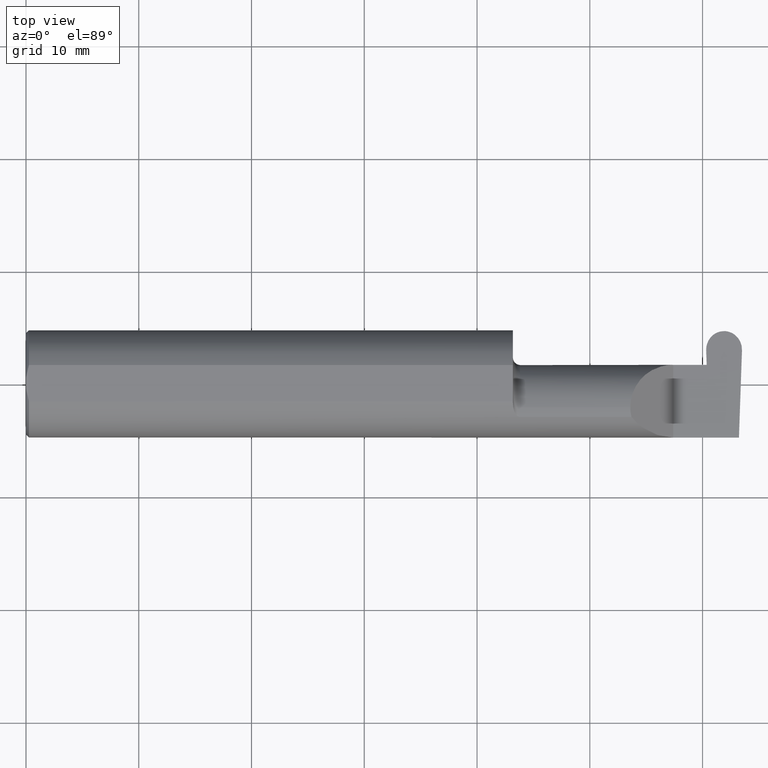
[diagram: clean part render]
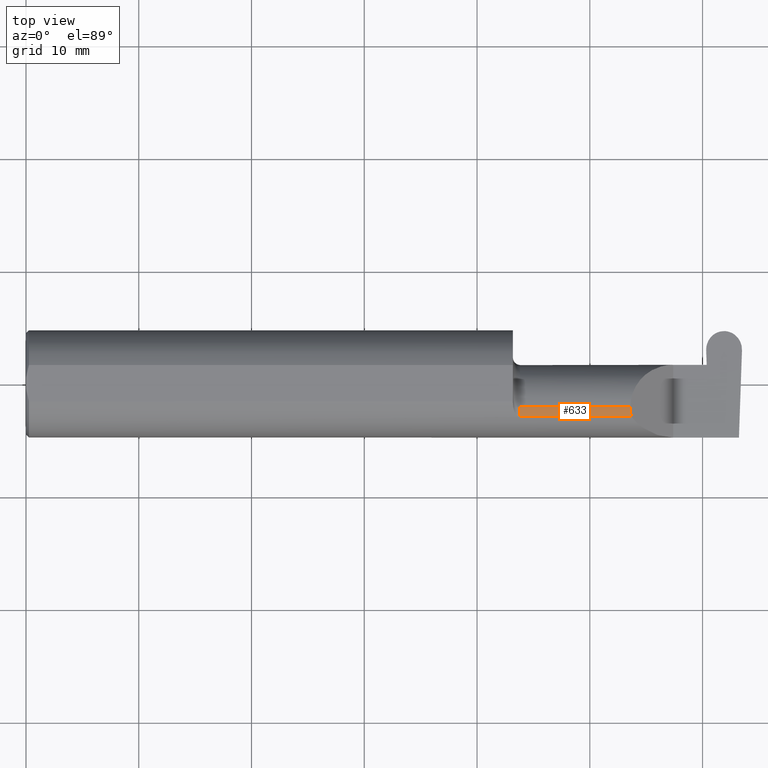
[diagram: same view with one face highlighted and labeled with its STEP entity id]
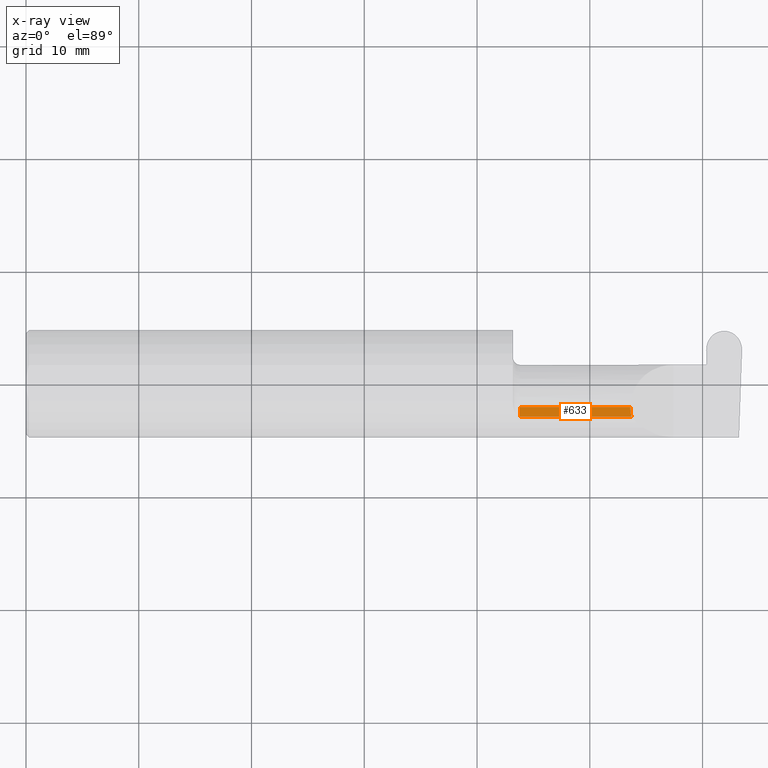
[diagram: x-ray of the same camera — body ghosted, the highlighted face saturated]
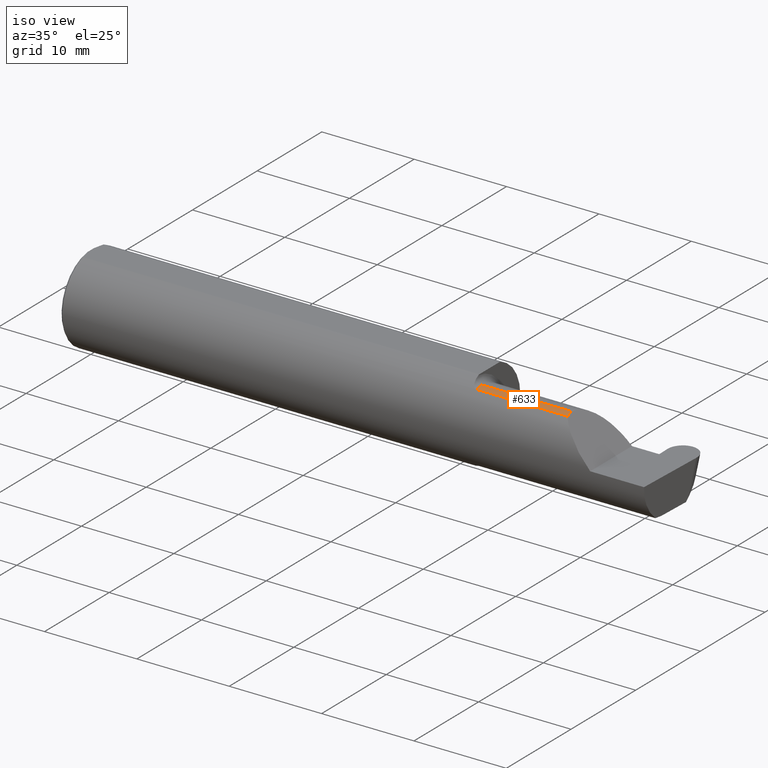
[diagram: same view with one face highlighted and labeled with its STEP entity id]
A machine part, top view. The second image highlights one B-rep face of the part: STEP entity #633.
The next image is the same camera in x-ray: the body ghosted, the highlighted face saturated — about 0% of this face is hidden behind the body in this view.
A second angle (iso view) of the same face is appended — the face is thin or edge-on in the first view.
In plain terms, the highlighted cylindrical surface (partial cylindrical patch) has radius 3.81 mm, axis along (-1, -0, -0).
Its self-contained STEP definition (entity closure, byte-faithful):
#28 = LINE ( 'NONE', #784, #260 ) ;
#54 = DIRECTION ( 'NONE',  ( 0.000000000000000000, 0.000000000000000000, 1.000000000000000000 ) ) ;
#59 = CARTESIAN_POINT ( 'NONE',  ( 2.111300037307153765, -0.1061291577212410409, 0.1486999626928446061 ) ) ;
#65 = CARTESIAN_POINT ( 'NONE',  ( 1.699999999999999956, -0.08334999999999999354, 0.000000000000000000 ) ) ;
#75 = AXIS2_PLACEMENT_3D ( 'NONE', #65, #617, #54 ) ;
#88 = CARTESIAN_POINT ( 'NONE',  ( 2.109999999999998987, -0.08334999999999999354, 0.1499999999999999944 ) ) ;
#136 =( BOUNDED_CURVE ( )  B_SPLINE_CURVE ( 3, ( #623, #59, #310, #495 ),
 .UNSPECIFIED., .F., .T. ) 
 B_SPLINE_CURVE_WITH_KNOTS ( ( 4, 4 ),
 ( 6.055147272130141367, 6.283185307179586232 ),
 .UNSPECIFIED. ) 
 CURVE ( )  GEOMETRIC_REPRESENTATION_ITEM ( )  RATIONAL_B_SPLINE_CURVE ( ( 1.000000000000000000, 0.9956712472009929815, 0.9956712472009929815, 1.000000000000000000 ) ) 
 REPRESENTATION_ITEM ( '' )  );
#154 = ORIENTED_EDGE ( 'NONE', *, *, #612, .T. ) ;
#159 = DIRECTION ( 'NONE',  ( 0.000000000000000000, 0.000000000000000000, 1.000000000000000000 ) ) ;
#164 = DIRECTION ( 'NONE',  ( -1.000000000000000000, -0.000000000000000000, -0.000000000000000000 ) ) ;
#166 = CIRCLE ( 'NONE', #324, 0.1499999999999999944 ) ;
#188 = DIRECTION ( 'NONE',  ( 1.000000000000000000, 0.000000000000000000, 0.000000000000000000 ) ) ;
#218 = EDGE_CURVE ( 'NONE', #518, #717, #136, .T. ) ;
#260 = VECTOR ( 'NONE', #589, 39.37007874015748143 ) ;
#310 = CARTESIAN_POINT ( 'NONE',  ( 2.109999999999998543, -0.09477667630339427218, 0.1499999999999999667 ) ) ;
#317 = ORIENTED_EDGE ( 'NONE', *, *, #218, .T. ) ;
#324 = AXIS2_PLACEMENT_3D ( 'NONE', #735, #164, #159 ) ;
#325 = CARTESIAN_POINT ( 'NONE',  ( 1.724999999999999867, -0.08334999999999999354, 0.1499999999999999944 ) ) ;
#341 = CARTESIAN_POINT ( 'NONE',  ( 2.113883229301068312, -0.1172600179964008171, 0.1461167706989301707 ) ) ;
#369 = LINE ( 'NONE', #614, #644 ) ;
#379 = EDGE_CURVE ( 'NONE', #717, #699, #28, .T. ) ;
#421 = CARTESIAN_POINT ( 'NONE',  ( 1.724999999999999867, -0.1172600179964006645, 0.1461167706989303372 ) ) ;
#476 = EDGE_CURVE ( 'NONE', #629, #699, #166, .T. ) ;
#495 = CARTESIAN_POINT ( 'NONE',  ( 2.109999999999998987, -0.08334999999999999354, 0.1499999999999999944 ) ) ;
#518 = VERTEX_POINT ( 'NONE', #341 ) ;
#554 = CYLINDRICAL_SURFACE ( 'NONE', #75, 0.1499999999999999944 ) ;
#565 = ORIENTED_EDGE ( 'NONE', *, *, #379, .T. ) ;
#589 = DIRECTION ( 'NONE',  ( -1.000000000000000000, -0.000000000000000000, -0.000000000000000000 ) ) ;
#612 = EDGE_CURVE ( 'NONE', #629, #518, #369, .T. ) ;
#614 = CARTESIAN_POINT ( 'NONE',  ( 2.049861994999999659, -0.1172600179964006784, 0.1461167706989303650 ) ) ;
#617 = DIRECTION ( 'NONE',  ( -1.000000000000000000, -0.000000000000000000, -0.000000000000000000 ) ) ;
#623 = CARTESIAN_POINT ( 'NONE',  ( 2.113883229301068312, -0.1172600179964008171, 0.1461167706989301707 ) ) ;
#629 = VERTEX_POINT ( 'NONE', #421 ) ;
#633 = ADVANCED_FACE ( 'NONE', ( #753 ), #554, .T. ) ;
#644 = VECTOR ( 'NONE', #188, 39.37007874015748143 ) ;
#699 = VERTEX_POINT ( 'NONE', #325 ) ;
#717 = VERTEX_POINT ( 'NONE', #88 ) ;
#735 = CARTESIAN_POINT ( 'NONE',  ( 1.724999999999999867, -0.08334999999999999354, 0.000000000000000000 ) ) ;
#753 = FACE_OUTER_BOUND ( 'NONE', #816, .T. ) ;
#784 = CARTESIAN_POINT ( 'NONE',  ( 1.699999999999999956, -0.08334999999999999354, 0.1499999999999999944 ) ) ;
#806 = ORIENTED_EDGE ( 'NONE', *, *, #476, .F. ) ;
#816 = EDGE_LOOP ( 'NONE', ( #317, #565, #806, #154 ) ) ;